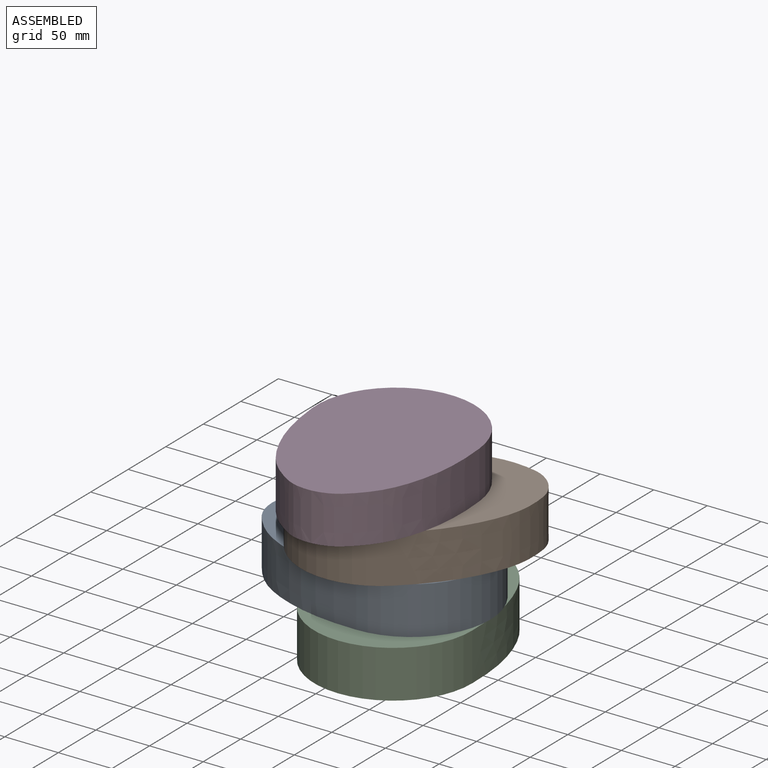
[diagram: assembled view]
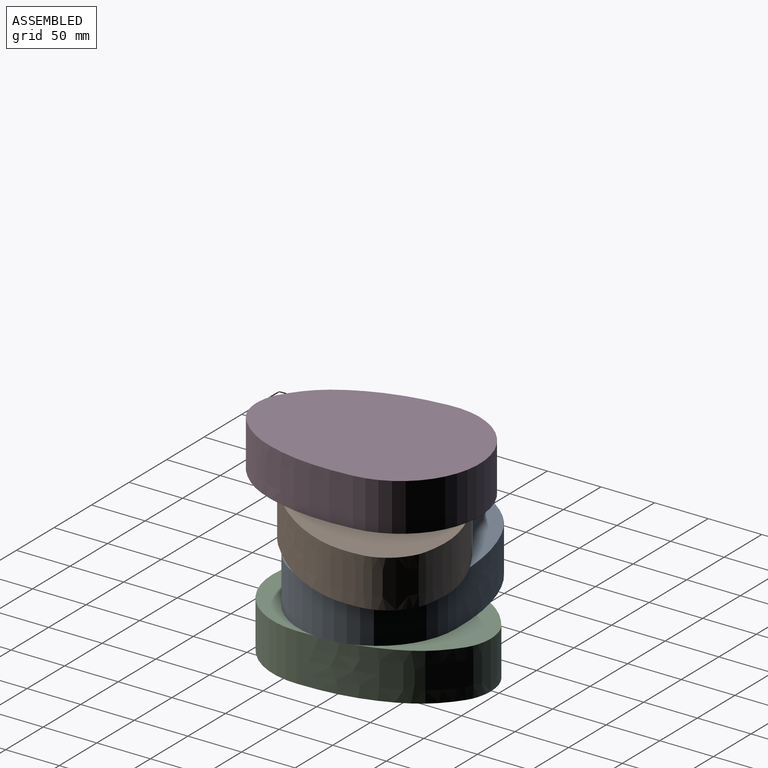
[diagram: assembled view, second angle]
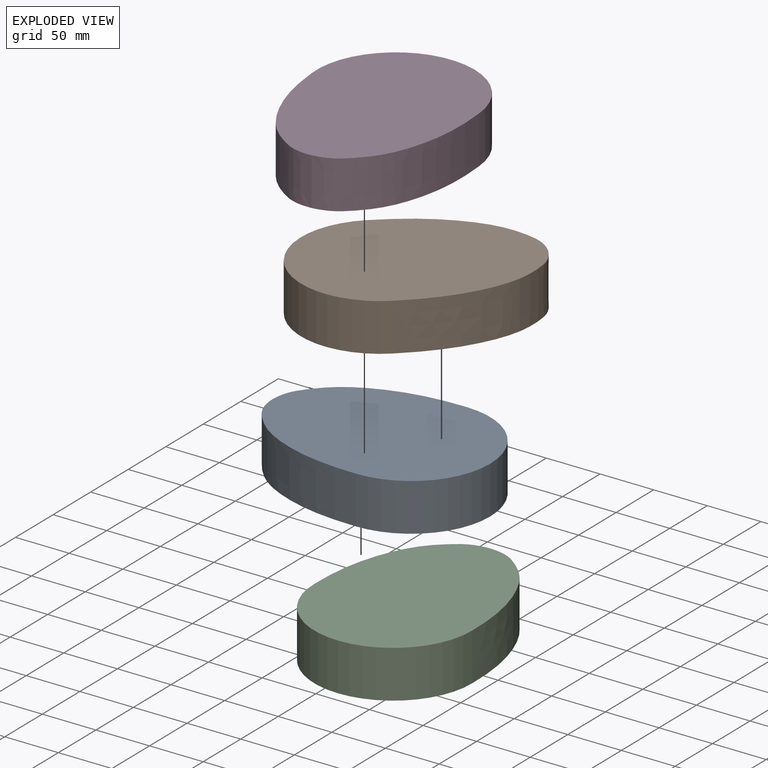
[diagram: exploded view]
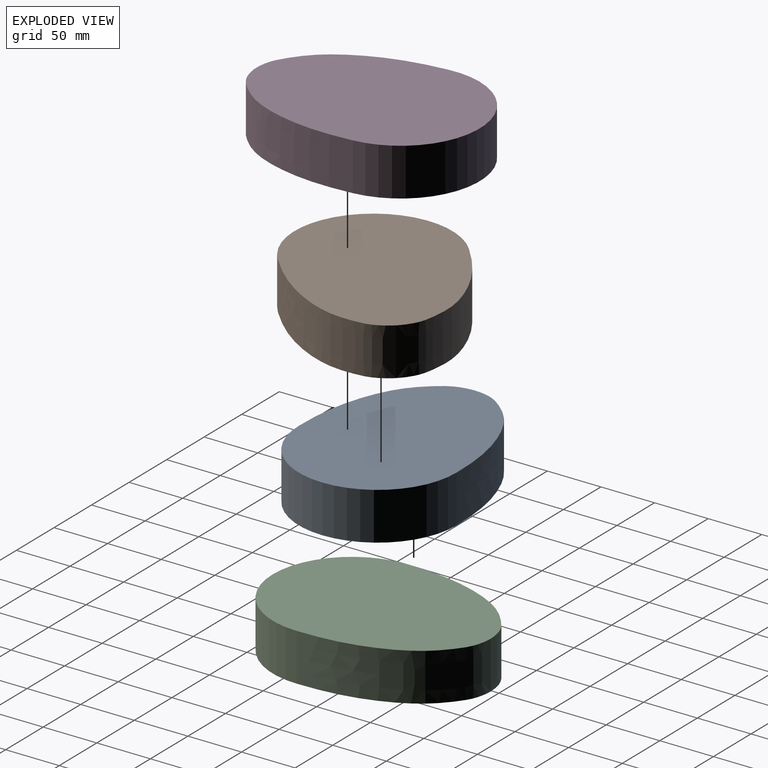
[diagram: exploded view, second angle]
ASSEMBLY  parts=4 mates=3
PART A: 5 faces, bbox 147.7x203.2x44.5 mm
  f0: cylinder r=73.6mm len=147.2mm, axis (0,0,-1), area 10277.9mm2, adj f1,f2,f3,f4
  f1: extruded ~129.6x73.6mm, area 7257.6mm2, adj f0,f2,f3,f4
  f2: extruded ~129.6x73.6mm, area 7257.6mm2, adj f0,f1,f3,f4
  f3: plane 203.2x147.66mm, normal (0,0,1), area 23663.8mm2, adj f0,f1,f2
  f4: plane 203.2x147.66mm, normal (0,0,-1), area 23663.8mm2, adj f0,f1,f2
PART B: same geometry as A
PART C: same geometry as A
PART D: same geometry as A
PLACE A rot(axis=(0,0,1),90deg) t=(-157.53,-33.35,68.1)mm
PLACE B rot(axis=(0,0,-1),47.4deg) t=(-175.26,-49.67,112.55)mm
PLACE C t=(-157.53,-57.45,23.65)mm
PLACE D rot(axis=(0,0,-1),174.8deg) t=(-177.44,-25.67,157)mm
MATE revolute B.f4 <-> A.f0  axis (0,0,-1) through (-157.53,-33.35,112.55)mm
MATE revolute D.f4 <-> B.f0  axis (0,0,-1) through (-175.26,-49.67,157)mm
MATE fastened A.f0 <-> C.f3  axis (0,0,-1) through (-157.53,-33.35,68.1)mm
